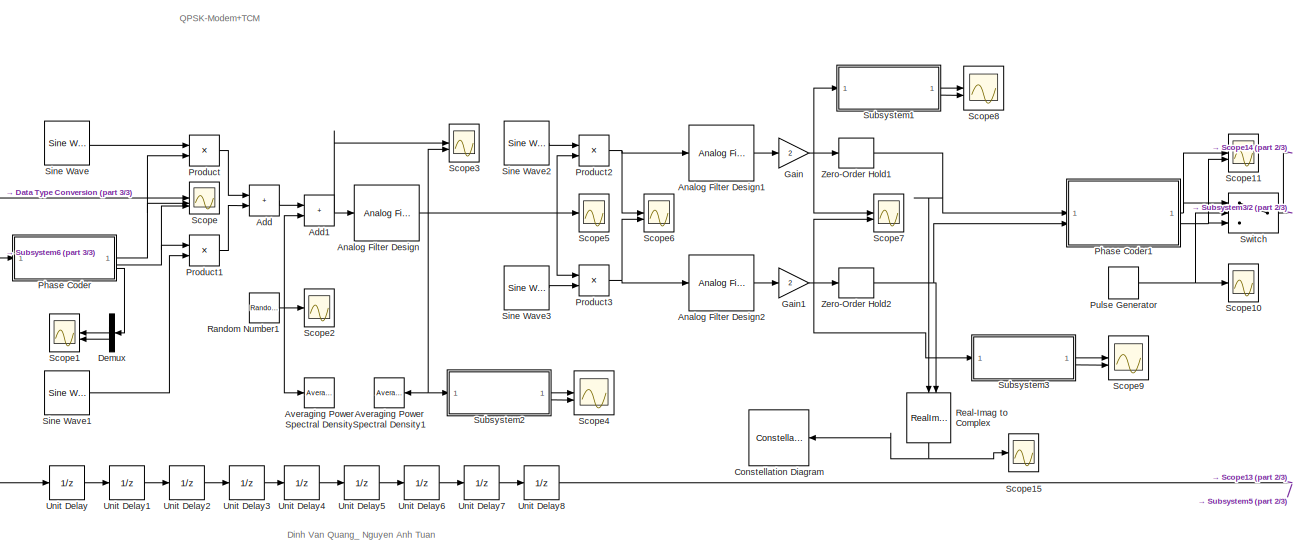
[diagram: root canvas - part 1/3, center side, full height]
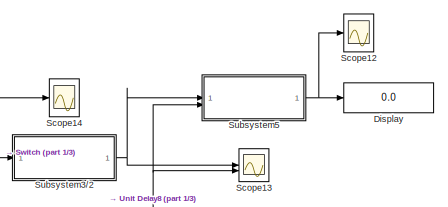
[diagram: root canvas - part 2/3, top right region]
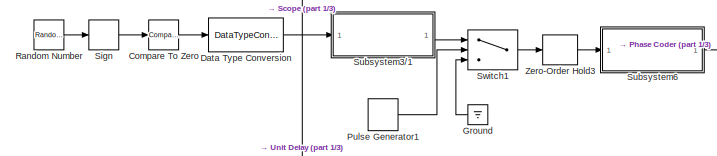
[diagram: root canvas - part 3/3, middle left region]
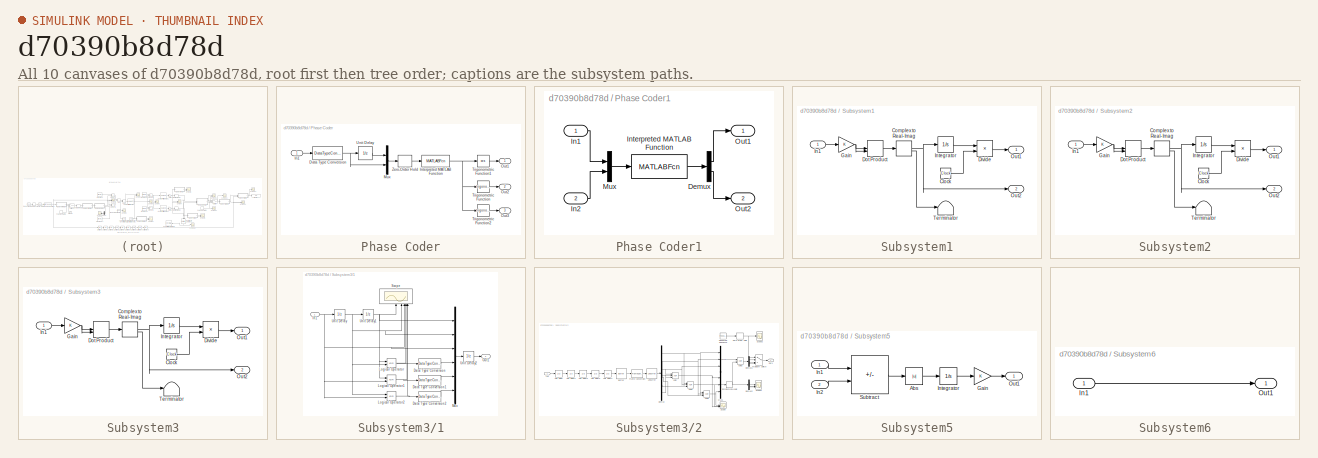
[diagram: thumbnail index - all 10 canvases of the model, root first then tree order]
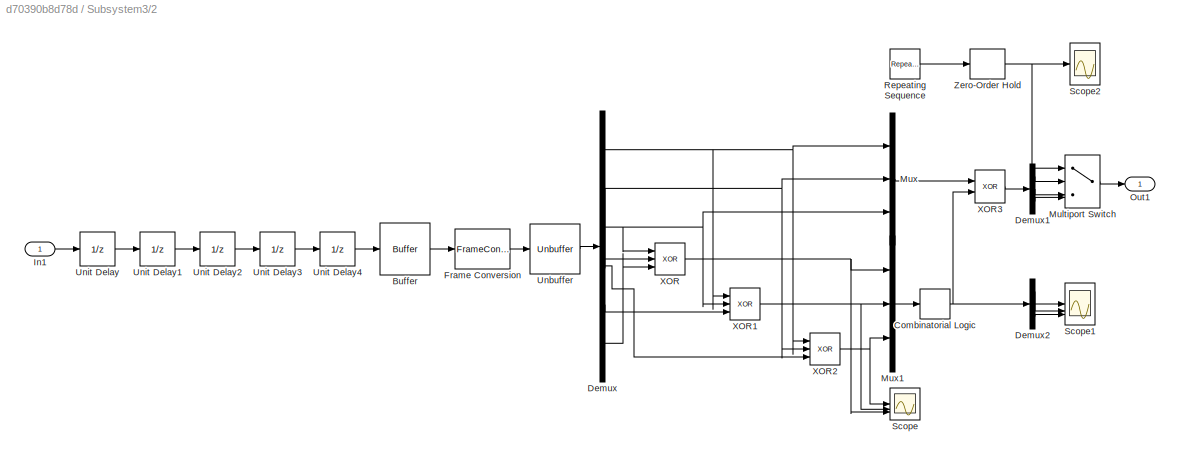
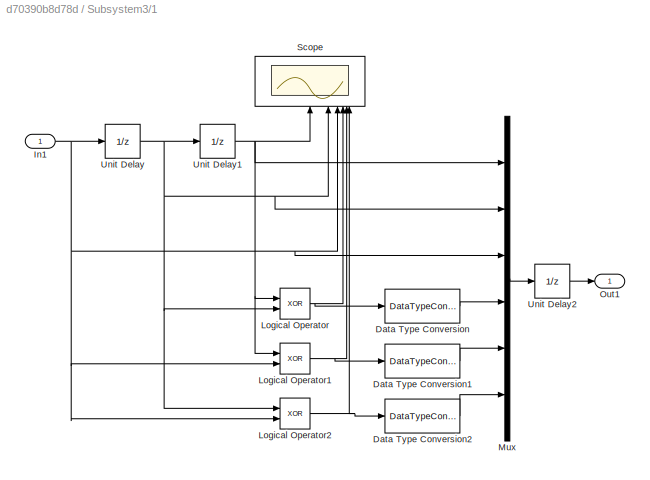
MODEL slx_d70390b8d78d
KIND model
CONFIG AbsTol = auto
CONFIG EnableMultiTasking = on
CONFIG FixedStep = auto
CONFIG MaxStep = auto
CONFIG MinStep = auto
CONFIG RelTol = 1e-3
CONFIG SampleTimeConstraint = Unconstrained
CONFIG SolverName = VariableStepAuto
CONFIG StartTime = 0.0
CONFIG StopTime = 10.0
BLOCK [Sum] Add
  IconShape = rectangular
BLOCK [Sum] Add1
  IconShape = rectangular
BLOCK [Reference] Analog Filter Design  REF=dspfdesign/Analog
Filter Design
  SourceBlock = dspfdesign/Analog\nFilter Design
  SourceType = Analog Filter Design
BLOCK [Reference] Analog Filter Design1  REF=dspfdesign/Analog
Filter Design
  SourceBlock = dspfdesign/Analog\nFilter Design
  SourceType = Analog Filter Design
BLOCK [Reference] Analog Filter Design2  REF=dspfdesign/Analog
Filter Design
  SourceBlock = dspfdesign/Analog\nFilter Design
  SourceType = Analog Filter Design
BLOCK [Reference] Averaging Power Spectral Density  REF=simulink_extras/Additional
Sinks/Averaging
Power Spectral
Density
  SourceBlock = simulink_extras/Additional\nSinks/Averaging\nPower Spectral\nDensity
  SourceType = Averaging Power Spectral Density
BLOCK [Reference] Averaging Power Spectral Density1  REF=simulink_extras/Additional
Sinks/Averaging
Power Spectral
Density
  NameLocation = top
  SourceBlock = simulink_extras/Additional\nSinks/Averaging\nPower Spectral\nDensity
  SourceType = Averaging Power Spectral Density
BLOCK [Reference] Compare To Zero  REF=simulink/Logic and Bit
Operations/Compare
To Zero
  SourceBlock = simulink/Logic and Bit\nOperations/Compare\nTo Zero
  SourceType = Compare To Zero
BLOCK [ConstellationDiagram] Constellation Diagram
  GraphicalSettings = {"GraphicalSettings":{"Style":{}}}
  NameLocation = top
  ScopeFrameLocation = window
  WasSavedAsWebScope = on
  WindowPosition = [382.000000,84.000000,600.000000,600.000000,]
BLOCK [DataTypeConversion] Data Type Conversion
  OutDataTypeStr = double
  RndMeth = Floor
  SaturateOnIntegerOverflow = off
BLOCK [Demux] Demux
  NameLocation = top
  Outputs = 2
BLOCK [Display] Display
  Decimation = 1
BLOCK [Gain] Gain
  Gain = 2
BLOCK [Gain] Gain1
  Gain = 2
BLOCK [Ground] Ground
  NameLocation = top
BLOCK [SubSystem] Phase Coder
BLOCK [DataTypeConversion] Phase Coder/Data Type Conversion
  RndMeth = Floor
  SaturateOnIntegerOverflow = off
BLOCK [Inport] Phase Coder/In1
BLOCK [MATLABFcn] Phase Coder/Interpreted MATLAB Function
  MATLABFcn = dibit_phaze
BLOCK [Mux] Phase Coder/Mux
  DisplayOption = bar
  Inputs = 2
BLOCK [Outport] Phase Coder/Out1
BLOCK [Outport] Phase Coder/Out2
  Port = 2
BLOCK [Outport] Phase Coder/Out3
  Port = 3
BLOCK [Trigonometry] Phase Coder/Trigonometric Function
BLOCK [Trigonometry] Phase Coder/Trigonometric Function1
  Operator = cos
BLOCK [Trigonometry] Phase Coder/Trigonometric Function2
BLOCK [UnitDelay] Phase Coder/Unit Delay
  HasFrameUpgradeWarning = on
  SampleTime = -1
BLOCK [ZeroOrderHold] Phase Coder/Zero-Order Hold
BLOCK [SubSystem] Phase Coder1
BLOCK [Demux] Phase Coder1/Demux
  Outputs = 2
BLOCK [Inport] Phase Coder1/In1
BLOCK [Inport] Phase Coder1/In2
  Port = 2
BLOCK [MATLABFcn] Phase Coder1/Interpreted MATLAB Function
BLOCK [Mux] Phase Coder1/Mux
  DisplayOption = bar
  Inputs = 2
BLOCK [Outport] Phase Coder1/Out1
BLOCK [Outport] Phase Coder1/Out2
  Port = 2
BLOCK [Product] Product
BLOCK [Product] Product1
BLOCK [Product] Product2
BLOCK [Product] Product3
BLOCK [DiscretePulseGenerator] Pulse Generator
  Period = 10
  PulseType = Time based
  PulseWidth = 5
BLOCK [DiscretePulseGenerator] Pulse Generator1
  Period = 10
  PulseType = Time based
  PulseWidth = 5
BLOCK [RandomNumber] Random Number
  SampleTime = 0.1
BLOCK [RandomNumber] Random Number1
  SampleTime = 0.1
BLOCK [RealImagToComplex] Real-Imag to Complex
  NameLocation = left
BLOCK [Scope] Scope
  Floating = off
  NumInputPorts = 3
  ScopeSpecificationString = C++SS(StrPVP('SaveName','ScopeData2'),StrPVP('LimitDataPoints','on'),StrPVP('DataFormat','Array'),StrPVP('Decimation','1'),StrPVP('BlockParamSampleInput','off'),StrPVP('SaveName','ScopeData'))
BLOCK [Scope] Scope1
  Floating = off
  NameLocation = top
  NumInputPorts = 2
  ScopeSpecificationString = Simulink.scopes.TimeScopeBlockCfg('CurrentConfiguration', extmgr.ConfigurationSet(extmgr.Configuration('Core','General UI',true),extmgr.Configuration('Core','Source UI',true),extmgr.Configuration('Sources','WiredSimulink',true,'DataLoggingVariableName','ScopeData1','DataLoggingLimitDataPoints',true,'DataLoggingSaveFormat','Array','DataLoggingDecimation','1','DataLoggingDecimateData',true),extmgr.C...<+183ch>
BLOCK [Scope] Scope10
  Floating = off
  NumInputPorts = 1
  ScopeSpecificationString = Simulink.scopes.TimeScopeBlockCfg('CurrentConfiguration', extmgr.ConfigurationSet(extmgr.Configuration('Core','General UI',true),extmgr.Configuration('Core','Source UI',true),extmgr.Configuration('Sources','WiredSimulink',true,'DataLoggingVariableName','ScopeData10','DataLoggingLimitDataPoints',true,'DataLoggingSaveFormat','Array','DataLoggingDecimation','1','DataLoggingDecimateData',true),extmgr....<+184ch>
BLOCK [Scope] Scope11
  Floating = off
  NumInputPorts = 2
  ScopeSpecificationString = Simulink.scopes.TimeScopeBlockCfg('CurrentConfiguration', extmgr.ConfigurationSet(extmgr.Configuration('Core','General UI',true),extmgr.Configuration('Core','Source UI',true),extmgr.Configuration('Sources','WiredSimulink',true,'DataLoggingVariableName','ScopeData11','DataLoggingLimitDataPoints',true,'DataLoggingSaveFormat','Array','DataLoggingDecimation','1','DataLoggingDecimateData',true),extmgr....<+184ch>
BLOCK [Scope] Scope12
  Floating = off
  NumInputPorts = 1
  ScopeSpecificationString = Simulink.scopes.TimeScopeBlockCfg('CurrentConfiguration', extmgr.ConfigurationSet(extmgr.Configuration('Core','General UI',true),extmgr.Configuration('Core','Source UI',true),extmgr.Configuration('Sources','WiredSimulink',true,'DataLoggingVariableName','ScopeData12','DataLoggingLimitDataPoints',true,'DataLoggingSaveFormat','Array','DataLoggingDecimation','1','DataLoggingDecimateData',true),extmgr....<+184ch>
BLOCK [Scope] Scope13
  Floating = off
  NumInputPorts = 2
  ScopeSpecificationString = C++SS(StrPVP('SaveName','ScopeData'),StrPVP('SaveName','ScopeData9'),StrPVP('LimitDataPoints','on'),StrPVP('DataFormat','Array'),StrPVP('Decimation','1'),StrPVP('BlockParamSampleInput','off'),StrPVP('SaveName','ScopeData13'))
BLOCK [Scope] Scope14
  Floating = off
  NumInputPorts = 1
  ScopeSpecificationString = Simulink.scopes.TimeScopeBlockCfg('CurrentConfiguration', extmgr.ConfigurationSet(extmgr.Configuration('Core','General UI',true),extmgr.Configuration('Core','Source UI',true),extmgr.Configuration('Sources','WiredSimulink',true,'DataLoggingVariableName','ScopeData14','DataLoggingLimitDataPoints',true,'DataLoggingSaveFormat','Array','DataLoggingDecimation','1','DataLoggingDecimateData',true),extmgr....<+184ch>
BLOCK [Scope] Scope15
  Floating = off
  NumInputPorts = 1
  ScopeSpecificationString = Simulink.scopes.TimeScopeBlockCfg('CurrentConfiguration', extmgr.ConfigurationSet(extmgr.Configuration('Core','General UI',true),extmgr.Configuration('Core','Source UI',true),extmgr.Configuration('Sources','WiredSimulink',true,'DataLoggingVariableName','ScopeData1','DataLoggingLimitDataPoints',true,'DataLoggingSaveFormat','Array','DataLoggingDecimation','1','DataLoggingDecimateData',true),extmgr.C...<+183ch>
BLOCK [Scope] Scope2
  Floating = off
  NumInputPorts = 1
  ScopeSpecificationString = Simulink.scopes.TimeScopeBlockCfg('CurrentConfiguration', extmgr.ConfigurationSet(extmgr.Configuration('Core','General UI',true),extmgr.Configuration('Core','Source UI',true),extmgr.Configuration('Sources','WiredSimulink',true,'DataLoggingVariableName','ScopeData2','DataLoggingLimitDataPoints',true,'DataLoggingSaveFormat','Array','DataLoggingDecimation','1','DataLoggingDecimateData',true),extmgr.C...<+183ch>
BLOCK [Scope] Scope3
  Floating = off
  NumInputPorts = 2
  ScopeSpecificationString = Simulink.scopes.TimeScopeBlockCfg('CurrentConfiguration', extmgr.ConfigurationSet(extmgr.Configuration('Core','General UI',true),extmgr.Configuration('Core','Source UI',true),extmgr.Configuration('Sources','WiredSimulink',true,'DataLoggingVariableName','ScopeData3','DataLoggingLimitDataPoints',true,'DataLoggingSaveFormat','Array','DataLoggingDecimation','1','DataLoggingDecimateData',true),extmgr.C...<+183ch>
BLOCK [Scope] Scope4
  Floating = off
  NumInputPorts = 2
  ScopeSpecificationString = C++SS(StrPVP('SaveName','ScopeData'),StrPVP('SaveName','ScopeData2'),StrPVP('SaveName','ScopeData3'),StrPVP('LimitDataPoints','on'),StrPVP('DataFormat','Array'),StrPVP('Decimation','1'),StrPVP('BlockParamSampleInput','off'),StrPVP('SaveName','ScopeData4'))
BLOCK [Scope] Scope5
  Floating = off
  NumInputPorts = 1
  ScopeSpecificationString = Simulink.scopes.TimeScopeBlockCfg('CurrentConfiguration', extmgr.ConfigurationSet(extmgr.Configuration('Core','General UI',true),extmgr.Configuration('Core','Source UI',true),extmgr.Configuration('Sources','WiredSimulink',true,'DataLoggingVariableName','ScopeData5','DataLoggingLimitDataPoints',true,'DataLoggingSaveFormat','Array','DataLoggingDecimation','1','DataLoggingDecimateData',true),extmgr.C...<+183ch>
BLOCK [Scope] Scope6
  Floating = off
  NumInputPorts = 2
  ScopeSpecificationString = Simulink.scopes.TimeScopeBlockCfg('CurrentConfiguration', extmgr.ConfigurationSet(extmgr.Configuration('Core','General UI',true),extmgr.Configuration('Core','Source UI',true),extmgr.Configuration('Sources','WiredSimulink',true,'DataLoggingVariableName','ScopeData6','DataLoggingLimitDataPoints',true,'DataLoggingSaveFormat','Array','DataLoggingDecimation','1','DataLoggingDecimateData',true),extmgr.C...<+183ch>
BLOCK [Scope] Scope7
  Floating = off
  NumInputPorts = 2
  ScopeSpecificationString = Simulink.scopes.TimeScopeBlockCfg('CurrentConfiguration', extmgr.ConfigurationSet(extmgr.Configuration('Core','General UI',true),extmgr.Configuration('Core','Source UI',true),extmgr.Configuration('Sources','WiredSimulink',true,'DataLoggingVariableName','ScopeData7','DataLoggingLimitDataPoints',true,'DataLoggingSaveFormat','Array','DataLoggingDecimation','1','DataLoggingDecimateData',true),extmgr.C...<+183ch>
BLOCK [Scope] Scope8
  Floating = off
  NumInputPorts = 2
  ScopeSpecificationString = C++SS(StrPVP('SaveName','ScopeData'),StrPVP('SaveName','ScopeData2'),StrPVP('SaveName','ScopeData3'),StrPVP('LimitDataPoints','on'),StrPVP('DataFormat','Array'),StrPVP('Decimation','1'),StrPVP('BlockParamSampleInput','off'),StrPVP('SaveName','ScopeData4'),StrPVP('SaveName','ScopeData8'))
BLOCK [Scope] Scope9
  Floating = off
  NumInputPorts = 2
  ScopeSpecificationString = Simulink.scopes.TimeScopeBlockCfg('CurrentConfiguration', extmgr.ConfigurationSet(extmgr.Configuration('Core','General UI',true),extmgr.Configuration('Core','Source UI',true),extmgr.Configuration('Sources','WiredSimulink',true,'DataLoggingVariableName','ScopeData9','DataLoggingLimitDataPoints',true,'DataLoggingSaveFormat','Array','DataLoggingDecimation','1','DataLoggingDecimateData',true),extmgr.C...<+165ch>
BLOCK [Signum] Sign
BLOCK [Reference] Sine Wave  REF=dspsrcs4/Sine Wave
  SourceBlock = dspsrcs4/Sine Wave
  SourceType = Sine Wave
BLOCK [Reference] Sine Wave1  REF=dspsrcs4/Sine Wave
  SourceBlock = dspsrcs4/Sine Wave
  SourceType = Sine Wave
BLOCK [Reference] Sine Wave2  REF=dspsrcs4/Sine Wave
  SourceBlock = dspsrcs4/Sine Wave
  SourceType = Sine Wave
BLOCK [Reference] Sine Wave3  REF=dspsrcs4/Sine Wave
  SourceBlock = dspsrcs4/Sine Wave
  SourceType = Sine Wave
BLOCK [SubSystem] Subsystem1
BLOCK [Clock] Subsystem1/Clock
BLOCK [ComplexToRealImag] Subsystem1/Complex to Real-Imag
BLOCK [Product] Subsystem1/Divide
  Inputs = */
BLOCK [DotProduct] Subsystem1/Dot Product
  OutDataTypeStr = Inherit: Inherit via internal rule
BLOCK [Gain] Subsystem1/Gain
BLOCK [Inport] Subsystem1/In1
BLOCK [Integrator] Subsystem1/Integrator
BLOCK [Outport] Subsystem1/Out1
BLOCK [Outport] Subsystem1/Out2
  Port = 2
BLOCK [Terminator] Subsystem1/Terminator
BLOCK [SubSystem] Subsystem2
BLOCK [Clock] Subsystem2/Clock
BLOCK [ComplexToRealImag] Subsystem2/Complex to Real-Imag
BLOCK [Product] Subsystem2/Divide
  Inputs = */
BLOCK [DotProduct] Subsystem2/Dot Product
  OutDataTypeStr = Inherit: Inherit via internal rule
BLOCK [Gain] Subsystem2/Gain
BLOCK [Inport] Subsystem2/In1
BLOCK [Integrator] Subsystem2/Integrator
BLOCK [Outport] Subsystem2/Out1
BLOCK [Outport] Subsystem2/Out2
  Port = 2
BLOCK [Terminator] Subsystem2/Terminator
BLOCK [SubSystem] Subsystem3
BLOCK [SubSystem] Subsystem3//1
BLOCK [DataTypeConversion] Subsystem3//1/Data Type Conversion
  RndMeth = Floor
  SaturateOnIntegerOverflow = off
BLOCK [DataTypeConversion] Subsystem3//1/Data Type Conversion1
  RndMeth = Floor
  SaturateOnIntegerOverflow = off
BLOCK [DataTypeConversion] Subsystem3//1/Data Type Conversion2
  RndMeth = Floor
  SaturateOnIntegerOverflow = off
BLOCK [Inport] Subsystem3//1/In1
BLOCK [Logic] Subsystem3//1/Logical Operator
  AllPortsSameDT = off
  Operator = XOR
  OutDataTypeStr = boolean
BLOCK [Logic] Subsystem3//1/Logical Operator1
  AllPortsSameDT = off
  Operator = XOR
  OutDataTypeStr = boolean
BLOCK [Logic] Subsystem3//1/Logical Operator2
  AllPortsSameDT = off
  Operator = XOR
  OutDataTypeStr = boolean
BLOCK [Mux] Subsystem3//1/Mux
  DisplayOption = bar
  Inputs = 6
BLOCK [Outport] Subsystem3//1/Out1
BLOCK [Scope] Subsystem3//1/Scope
  Floating = off
  NameLocation = right
  NumInputPorts = 6
  ScopeSpecificationString = C++SS(StrPVP('SaveName','ScopeData1'),StrPVP('LimitDataPoints','on'),StrPVP('DataFormat','Array'),StrPVP('Decimation','1'),StrPVP('BlockParamSampleInput','off'))
BLOCK [UnitDelay] Subsystem3//1/Unit Delay
  HasFrameUpgradeWarning = on
  SampleTime = -1
BLOCK [UnitDelay] Subsystem3//1/Unit Delay1
  HasFrameUpgradeWarning = on
  SampleTime = -1
BLOCK [UnitDelay] Subsystem3//1/Unit Delay2
  HasFrameUpgradeWarning = on
  SampleTime = -1
BLOCK [SubSystem] Subsystem3//2
BLOCK [Buffer] Subsystem3//2/Buffer
  OutputFrames = off
BLOCK [CombinatorialLogic] Subsystem3//2/Combinatorial Logic
BLOCK [Demux] Subsystem3//2/Demux
  Outputs = 6
BLOCK [Demux] Subsystem3//2/Demux1
  Outputs = 3
BLOCK [Demux] Subsystem3//2/Demux2
  Outputs = 3
BLOCK [FrameConversion] Subsystem3//2/Frame Conversion
  OutFrame = Sample-based
BLOCK [Inport] Subsystem3//2/In1
BLOCK [MultiPortSwitch] Subsystem3//2/Multiport Switch
  InputSameDT = off
  SaturateOnIntegerOverflow = off
BLOCK [Mux] Subsystem3//2/Mux
  DisplayOption = bar
  Inputs = 3
BLOCK [Mux] Subsystem3//2/Mux1
  DisplayOption = bar
  Inputs = 3
BLOCK [Outport] Subsystem3//2/Out1
BLOCK [Reference] Subsystem3//2/Repeating Sequence  REF=simulink/Sources/Repeating
Sequence
  SourceBlock = simulink/Sources/Repeating\nSequence
  SourceType = Repeating table
BLOCK [Scope] Subsystem3//2/Scope
  Floating = off
  NumInputPorts = 3
  ScopeSpecificationString = Simulink.scopes.TimeScopeBlockCfg('CurrentConfiguration', extmgr.ConfigurationSet(extmgr.Configuration('Core','General UI',true),extmgr.Configuration('Core','Source UI',true),extmgr.Configuration('Sources','WiredSimulink',true,'DataLoggingVariableName','ScopeData2','DataLoggingLimitDataPoints',true,'DataLoggingSaveFormat','Array','DataLoggingDecimation','1','DataLoggingDecimateData',true),extmgr.C...<+183ch>
BLOCK [Scope] Subsystem3//2/Scope1
  Floating = off
  NumInputPorts = 3
  ScopeSpecificationString = C++SS(StrPVP('SaveName','ScopeData2'),StrPVP('SaveName','ScopeData3'),StrPVP('LimitDataPoints','on'),StrPVP('DataFormat','Array'),StrPVP('Decimation','1'),StrPVP('BlockParamSampleInput','off'))
BLOCK [Scope] Subsystem3//2/Scope2
  Floating = off
  NumInputPorts = 1
  ScopeSpecificationString = Simulink.scopes.TimeScopeBlockCfg('CurrentConfiguration', extmgr.ConfigurationSet(extmgr.Configuration('Core','General UI',true),extmgr.Configuration('Core','Source UI',true),extmgr.Configuration('Sources','WiredSimulink',true,'DataLoggingVariableName','ScopeData4'),extmgr.Configuration('Visuals','Time Domain',true),extmgr.Configuration('Tools','Plot Navigation',true),extmgr.Configuration('Tools',...<+58ch>
BLOCK [Unbuffer] Subsystem3//2/Unbuffer
BLOCK [UnitDelay] Subsystem3//2/Unit Delay
  HasFrameUpgradeWarning = on
  SampleTime = -1
BLOCK [UnitDelay] Subsystem3//2/Unit Delay1
  HasFrameUpgradeWarning = on
  SampleTime = -1
BLOCK [UnitDelay] Subsystem3//2/Unit Delay2
  HasFrameUpgradeWarning = on
  SampleTime = -1
BLOCK [UnitDelay] Subsystem3//2/Unit Delay3
  HasFrameUpgradeWarning = on
  SampleTime = -1
BLOCK [UnitDelay] Subsystem3//2/Unit Delay4
  HasFrameUpgradeWarning = on
  SampleTime = -1
BLOCK [Logic] Subsystem3//2/XOR
  AllPortsSameDT = off
  Inputs = 3
  Operator = XOR
  OutDataTypeStr = boolean
BLOCK [Logic] Subsystem3//2/XOR1
  AllPortsSameDT = off
  Inputs = 3
  Operator = XOR
  OutDataTypeStr = boolean
BLOCK [Logic] Subsystem3//2/XOR2
  AllPortsSameDT = off
  Inputs = 3
  Operator = XOR
  OutDataTypeStr = boolean
BLOCK [Logic] Subsystem3//2/XOR3
  AllPortsSameDT = off
  Operator = XOR
  OutDataTypeStr = boolean
BLOCK [ZeroOrderHold] Subsystem3//2/Zero-Order Hold
  SampleTime = -1
BLOCK [Clock] Subsystem3/Clock
BLOCK [ComplexToRealImag] Subsystem3/Complex to Real-Imag
BLOCK [Product] Subsystem3/Divide
  Inputs = */
BLOCK [DotProduct] Subsystem3/Dot Product
  OutDataTypeStr = Inherit: Inherit via internal rule
BLOCK [Gain] Subsystem3/Gain
BLOCK [Inport] Subsystem3/In1
BLOCK [Integrator] Subsystem3/Integrator
BLOCK [Outport] Subsystem3/Out1
BLOCK [Outport] Subsystem3/Out2
  Port = 2
BLOCK [Terminator] Subsystem3/Terminator
BLOCK [SubSystem] Subsystem5
BLOCK [Abs] Subsystem5/Abs
  SaturateOnIntegerOverflow = off
BLOCK [Gain] Subsystem5/Gain
BLOCK [Inport] Subsystem5/In1
BLOCK [Inport] Subsystem5/In2
  Port = 2
BLOCK [Integrator] Subsystem5/Integrator
BLOCK [Outport] Subsystem5/Out1
BLOCK [Sum] Subsystem5/Subtract
  IconShape = rectangular
  Inputs = +-
BLOCK [SubSystem] Subsystem6
BLOCK [Inport] Subsystem6/In1
BLOCK [Outport] Subsystem6/Out1
BLOCK [Switch] Switch
  Criteria = u2 > Threshold
  InputSameDT = off
  SaturateOnIntegerOverflow = off
BLOCK [Switch] Switch1
  Criteria = u2 > Threshold
  InputSameDT = off
  SaturateOnIntegerOverflow = off
BLOCK [UnitDelay] Unit Delay
  HasFrameUpgradeWarning = on
  SampleTime = -1
BLOCK [UnitDelay] Unit Delay1
  HasFrameUpgradeWarning = on
  SampleTime = -1
BLOCK [UnitDelay] Unit Delay2
  HasFrameUpgradeWarning = on
  SampleTime = -1
BLOCK [UnitDelay] Unit Delay3
  HasFrameUpgradeWarning = on
  SampleTime = -1
BLOCK [UnitDelay] Unit Delay4
  HasFrameUpgradeWarning = on
  SampleTime = -1
BLOCK [UnitDelay] Unit Delay5
  HasFrameUpgradeWarning = on
  SampleTime = -1
BLOCK [UnitDelay] Unit Delay6
  HasFrameUpgradeWarning = on
  SampleTime = -1
BLOCK [UnitDelay] Unit Delay7
  HasFrameUpgradeWarning = on
  SampleTime = -1
BLOCK [UnitDelay] Unit Delay8
  HasFrameUpgradeWarning = on
  SampleTime = -1
BLOCK [ZeroOrderHold] Zero-Order Hold1
  SampleTime = -1
BLOCK [ZeroOrderHold] Zero-Order Hold2
  SampleTime = -1
BLOCK [ZeroOrderHold] Zero-Order Hold3
  SampleTime = -1
ANNOTATION (root): Dinh Van Quang_ Nguyen Anh Tuan
ANNOTATION (root): QPSK-Modem+TCM
NET Add1:1 -> Analog Filter Design:1, Scope3:1
LINE Add:1 -> Add1:1
LINE Analog Filter Design1:1 -> Gain:1
LINE Analog Filter Design2:1 -> Gain1:1
NET Analog Filter Design:1 -> Averaging Power Spectral Density1:1, Product2:2, Product3:1, Scope3:2, Scope5:1, Subsystem2:1
LINE Compare To Zero:1 -> Data Type Conversion:1
NET Data Type Conversion:1 -> Scope:1, Subsystem3//1:1, Unit Delay:1
LINE Demux:1 -> Scope1:1
LINE Demux:2 -> Scope1:2
NET Gain1:1 -> Scope7:2, Subsystem3:1, Zero-Order Hold2:1
NET Gain:1 -> Scope7:1, Subsystem1:1, Zero-Order Hold1:1
LINE Ground:1 -> Switch1:3
NET Phase Coder/Data Type Conversion:1 -> Phase Coder/Mux:2, Phase Coder/Unit Delay:1
LINE Phase Coder/In1:1 -> Phase Coder/Data Type Conversion:1
NET Phase Coder/Interpreted MATLAB Function:1 -> Phase Coder/Trigonometric Function1:1, Phase Coder/Trigonometric Function2:1, Phase Coder/Trigonometric Function:1
LINE Phase Coder/Mux:1 -> Phase Coder/Zero-Order Hold:1
LINE Phase Coder/Trigonometric Function1:1 -> Phase Coder/Out1:1
LINE Phase Coder/Trigonometric Function2:1 -> Phase Coder/Out3:1
LINE Phase Coder/Trigonometric Function:1 -> Phase Coder/Out2:1
LINE Phase Coder/Unit Delay:1 -> Phase Coder/Mux:1
LINE Phase Coder/Zero-Order Hold:1 -> Phase Coder/Interpreted MATLAB Function:1
LINE Phase Coder1/Demux:1 -> Phase Coder1/Out1:1
LINE Phase Coder1/Demux:2 -> Phase Coder1/Out2:1
LINE Phase Coder1/In1:1 -> Phase Coder1/Mux:1
LINE Phase Coder1/In2:1 -> Phase Coder1/Mux:2
LINE Phase Coder1/Interpreted MATLAB Function:1 -> Phase Coder1/Demux:1
LINE Phase Coder1/Mux:1 -> Phase Coder1/Interpreted MATLAB Function:1
NET Phase Coder1:1 -> Scope11:1, Switch:1
NET Phase Coder1:2 -> Scope11:2, Switch:3
NET Phase Coder:1 -> Product:2, Scope:2
NET Phase Coder:2 -> Product1:1, Scope:3
LINE Phase Coder:3 -> Demux:1
LINE Product1:1 -> Add:2
NET Product2:1 -> Analog Filter Design1:1, Scope6:1
NET Product3:1 -> Analog Filter Design2:1, Scope6:2
LINE Product:1 -> Add:1
LINE Pulse Generator1:1 -> Switch1:2
NET Pulse Generator:1 -> Scope10:1, Switch:2
NET Random Number1:1 -> Add1:2, Averaging Power Spectral Density:1, Scope2:1
LINE Random Number:1 -> Sign:1
NET Real-Imag to Complex:1 -> Constellation Diagram:1, Scope15:1
LINE Sign:1 -> Compare To Zero:1
LINE Sine Wave1:1 -> Product1:2
LINE Sine Wave2:1 -> Product2:1
LINE Sine Wave3:1 -> Product3:2
LINE Sine Wave:1 -> Product:1
LINE Subsystem1/Clock:1 -> Subsystem1/Divide:2
NET Subsystem1/Complex to Real-Imag:1 -> Subsystem1/Integrator:1, Subsystem1/Out2:1
LINE Subsystem1/Complex to Real-Imag:2 -> Subsystem1/Terminator:1
LINE Subsystem1/Divide:1 -> Subsystem1/Out1:1
LINE Subsystem1/Dot Product:1 -> Subsystem1/Complex to Real-Imag:1
NET Subsystem1/Gain:1 -> Subsystem1/Dot Product:1, Subsystem1/Dot Product:2
LINE Subsystem1/In1:1 -> Subsystem1/Gain:1
LINE Subsystem1/Integrator:1 -> Subsystem1/Divide:1
LINE Subsystem1:1 -> Scope8:1
LINE Subsystem1:2 -> Scope8:2
LINE Subsystem2/Clock:1 -> Subsystem2/Divide:2
NET Subsystem2/Complex to Real-Imag:1 -> Subsystem2/Integrator:1, Subsystem2/Out2:1
LINE Subsystem2/Complex to Real-Imag:2 -> Subsystem2/Terminator:1
LINE Subsystem2/Divide:1 -> Subsystem2/Out1:1
LINE Subsystem2/Dot Product:1 -> Subsystem2/Complex to Real-Imag:1
NET Subsystem2/Gain:1 -> Subsystem2/Dot Product:1, Subsystem2/Dot Product:2
LINE Subsystem2/In1:1 -> Subsystem2/Gain:1
LINE Subsystem2/Integrator:1 -> Subsystem2/Divide:1
LINE Subsystem2:1 -> Scope4:1
LINE Subsystem2:2 -> Scope4:2
LINE Subsystem3//1/Data Type Conversion1:1 -> Subsystem3//1/Mux:5
LINE Subsystem3//1/Data Type Conversion2:1 -> Subsystem3//1/Mux:6
LINE Subsystem3//1/Data Type Conversion:1 -> Subsystem3//1/Mux:4
NET Subsystem3//1/In1:1 -> Subsystem3//1/Logical Operator1:2, Subsystem3//1/Logical Operator2:2, Subsystem3//1/Mux:3, Subsystem3//1/Scope:3, Subsystem3//1/Unit Delay:1
NET Subsystem3//1/Logical Operator1:1 -> Subsystem3//1/Data Type Conversion1:1, Subsystem3//1/Scope:5
NET Subsystem3//1/Logical Operator2:1 -> Subsystem3//1/Data Type Conversion2:1, Subsystem3//1/Scope:6
NET Subsystem3//1/Logical Operator:1 -> Subsystem3//1/Data Type Conversion:1, Subsystem3//1/Scope:4
LINE Subsystem3//1/Mux:1 -> Subsystem3//1/Unit Delay2:1
NET Subsystem3//1/Unit Delay1:1 -> Subsystem3//1/Logical Operator1:1, Subsystem3//1/Logical Operator:1, Subsystem3//1/Mux:1, Subsystem3//1/Scope:1
LINE Subsystem3//1/Unit Delay2:1 -> Subsystem3//1/Out1:1
NET Subsystem3//1/Unit Delay:1 -> Subsystem3//1/Logical Operator2:1, Subsystem3//1/Logical Operator:2, Subsystem3//1/Mux:2, Subsystem3//1/Scope:2, Subsystem3//1/Unit Delay1:1
LINE Subsystem3//1:1 -> Switch1:1
LINE Subsystem3//2/Buffer:1 -> Subsystem3//2/Frame Conversion:1
NET Subsystem3//2/Combinatorial Logic:1 -> Subsystem3//2/Demux2:1, Subsystem3//2/XOR3:2
LINE Subsystem3//2/Demux1:1 -> Subsystem3//2/Multiport Switch:2
LINE Subsystem3//2/Demux1:2 -> Subsystem3//2/Multiport Switch:3
LINE Subsystem3//2/Demux1:3 -> Subsystem3//2/Multiport Switch:4
LINE Subsystem3//2/Demux2:1 -> Subsystem3//2/Scope1:1
LINE Subsystem3//2/Demux2:2 -> Subsystem3//2/Scope1:2
LINE Subsystem3//2/Demux2:3 -> Subsystem3//2/Scope1:3
NET Subsystem3//2/Demux:1 -> Subsystem3//2/Mux:1, Subsystem3//2/XOR1:1, Subsystem3//2/XOR2:1
NET Subsystem3//2/Demux:2 -> Subsystem3//2/Mux:2, Subsystem3//2/XOR2:2, Subsystem3//2/XOR:2
NET Subsystem3//2/Demux:3 -> Subsystem3//2/Mux:3, Subsystem3//2/XOR1:2, Subsystem3//2/XOR:1
LINE Subsystem3//2/Demux:4 -> Subsystem3//2/XOR2:3
LINE Subsystem3//2/Demux:5 -> Subsystem3//2/XOR1:3
LINE Subsystem3//2/Demux:6 -> Subsystem3//2/XOR:3
LINE Subsystem3//2/Frame Conversion:1 -> Subsystem3//2/Unbuffer:1
LINE Subsystem3//2/In1:1 -> Subsystem3//2/Unit Delay:1
LINE Subsystem3//2/Multiport Switch:1 -> Subsystem3//2/Out1:1
LINE Subsystem3//2/Mux1:1 -> Subsystem3//2/Combinatorial Logic:1
LINE Subsystem3//2/Mux:1 -> Subsystem3//2/XOR3:1
LINE Subsystem3//2/Repeating Sequence:1 -> Subsystem3//2/Zero-Order Hold:1
LINE Subsystem3//2/Unbuffer:1 -> Subsystem3//2/Demux:1
LINE Subsystem3//2/Unit Delay1:1 -> Subsystem3//2/Unit Delay2:1
LINE Subsystem3//2/Unit Delay2:1 -> Subsystem3//2/Unit Delay3:1
LINE Subsystem3//2/Unit Delay3:1 -> Subsystem3//2/Unit Delay4:1
LINE Subsystem3//2/Unit Delay4:1 -> Subsystem3//2/Buffer:1
LINE Subsystem3//2/Unit Delay:1 -> Subsystem3//2/Unit Delay1:1
NET Subsystem3//2/XOR1:1 -> Subsystem3//2/Mux1:2, Subsystem3//2/Scope:2
NET Subsystem3//2/XOR2:1 -> Subsystem3//2/Mux1:3, Subsystem3//2/Scope:1
LINE Subsystem3//2/XOR3:1 -> Subsystem3//2/Demux1:1
NET Subsystem3//2/XOR:1 -> Subsystem3//2/Mux1:1, Subsystem3//2/Scope:3
NET Subsystem3//2/Zero-Order Hold:1 -> Subsystem3//2/Multiport Switch:1, Subsystem3//2/Scope2:1
NET Subsystem3//2:1 -> Scope13:1, Subsystem5:1
LINE Subsystem3/Clock:1 -> Subsystem3/Divide:2
NET Subsystem3/Complex to Real-Imag:1 -> Subsystem3/Integrator:1, Subsystem3/Out2:1
LINE Subsystem3/Complex to Real-Imag:2 -> Subsystem3/Terminator:1
LINE Subsystem3/Divide:1 -> Subsystem3/Out1:1
LINE Subsystem3/Dot Product:1 -> Subsystem3/Complex to Real-Imag:1
NET Subsystem3/Gain:1 -> Subsystem3/Dot Product:1, Subsystem3/Dot Product:2
LINE Subsystem3/In1:1 -> Subsystem3/Gain:1
LINE Subsystem3/Integrator:1 -> Subsystem3/Divide:1
LINE Subsystem3:1 -> Scope9:1
LINE Subsystem3:2 -> Scope9:2
LINE Subsystem5/Abs:1 -> Subsystem5/Integrator:1
LINE Subsystem5/Gain:1 -> Subsystem5/Out1:1
LINE Subsystem5/In1:1 -> Subsystem5/Subtract:1
LINE Subsystem5/In2:1 -> Subsystem5/Subtract:2
LINE Subsystem5/Integrator:1 -> Subsystem5/Gain:1
LINE Subsystem5/Subtract:1 -> Subsystem5/Abs:1
NET Subsystem5:1 -> Display:1, Scope12:1
LINE Subsystem6/In1:1 -> Subsystem6/Out1:1
LINE Subsystem6:1 -> Phase Coder:1
LINE Switch1:1 -> Zero-Order Hold3:1
NET Switch:1 -> Scope14:1, Subsystem3//2:1
LINE Unit Delay1:1 -> Unit Delay2:1
LINE Unit Delay2:1 -> Unit Delay3:1
LINE Unit Delay3:1 -> Unit Delay4:1
LINE Unit Delay4:1 -> Unit Delay5:1
LINE Unit Delay5:1 -> Unit Delay6:1
LINE Unit Delay6:1 -> Unit Delay7:1
LINE Unit Delay7:1 -> Unit Delay8:1
NET Unit Delay8:1 -> Scope13:2, Subsystem5:2
LINE Unit Delay:1 -> Unit Delay1:1
NET Zero-Order Hold1:1 -> Phase Coder1:1, Real-Imag to Complex:1
NET Zero-Order Hold2:1 -> Phase Coder1:2, Real-Imag to Complex:2
LINE Zero-Order Hold3:1 -> Subsystem6:1
note: NET lines group one-source signal fan-out (src -> all destinations, sorted); 1:1 wires keep LINE
